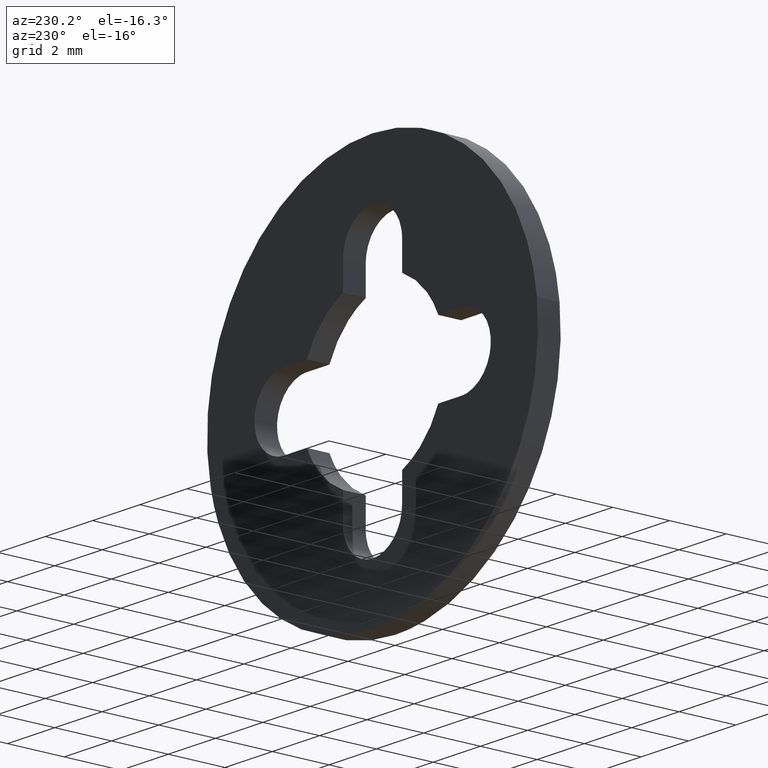
[diagram: clean part render]
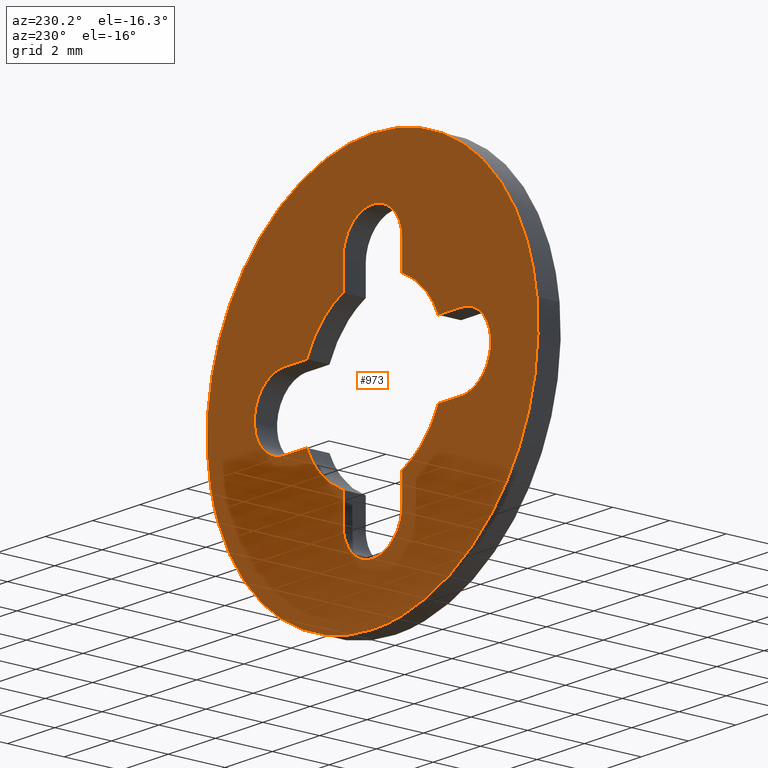
[diagram: same view with one face highlighted and labeled with its STEP entity id]
A machine part, auxiliary view. The second image highlights one B-rep face of the part: STEP entity #973.
In plain terms, the highlighted face is a freeform B-spline surface patch.
Its self-contained STEP definition (entity closure, byte-faithful):
#85=CARTESIAN_POINT('',(-6.951067204199181,0.800000000000023,0.826235270783800));
#86=VERTEX_POINT('',#85);
#92=CARTESIAN_POINT('',(0.0,0.800000000000023,-7.0));
#93=VERTEX_POINT('',#92);
#94=CARTESIAN_POINT('',(-6.951067204199181,0.800000000000023,0.826235270783800));
#95=CARTESIAN_POINT('',(-7.0,0.800000000000023,0.414566628547695));
#96=CARTESIAN_POINT('',(-7.0,0.800000000000023,0.0));
#97=CARTESIAN_POINT('',(-6.999999999999999,0.800000000000023,-6.999999999999999));
#98=CARTESIAN_POINT('',(0.0,0.800000000000023,-7.0));
#106=(BOUNDED_CURVE()B_SPLINE_CURVE(2,(#94,#95,#96,#97,#98),.UNSPECIFIED.,.F.,.U.)B_SPLINE_CURVE_WITH_KNOTS((3,2,3),(0.229562579808786,0.250000000000000,0.500000000000000),.UNSPECIFIED.)CURVE()GEOMETRIC_REPRESENTATION_ITEM()RATIONAL_B_SPLINE_CURVE((0.956026962526900,0.976056072863809,1.0,0.707106781186547,1.0))REPRESENTATION_ITEM(''));
#107=EDGE_CURVE('',#86,#93,#106,.T.);
#109=CARTESIAN_POINT('',(6.986943739989564,0.800000000000023,-0.427337307304794));
#110=VERTEX_POINT('',#109);
#111=CARTESIAN_POINT('',(0.0,0.800000000000023,-7.0));
#112=CARTESIAN_POINT('',(6.584944800046739,0.800000000000023,-6.999999999999999));
#113=CARTESIAN_POINT('',(6.986943739989564,0.800000000000023,-0.427337307304794));
#121=(BOUNDED_CURVE()B_SPLINE_CURVE(2,(#111,#112,#113),.UNSPECIFIED.,.F.,.U.)B_SPLINE_CURVE_WITH_KNOTS((3,3),(0.500000000000000,0.739333023226263),.UNSPECIFIED.)CURVE()GEOMETRIC_REPRESENTATION_ITEM()RATIONAL_B_SPLINE_CURVE((1.0,0.719603921835620,0.976072172374189))REPRESENTATION_ITEM(''));
#122=EDGE_CURVE('',#93,#110,#121,.T.);
#196=CARTESIAN_POINT('',(0.0,0.800000000000023,7.0));
#197=VERTEX_POINT('',#196);
#198=CARTESIAN_POINT('',(6.986943739989564,0.800000000000023,-0.427337307304794));
#199=CARTESIAN_POINT('',(7.0,0.800000000000023,-0.213868104908519));
#200=CARTESIAN_POINT('',(7.0,0.800000000000023,0.0));
#201=CARTESIAN_POINT('',(6.999999999999999,0.800000000000023,6.999999999999999));
#202=CARTESIAN_POINT('',(0.0,0.800000000000023,7.0));
#210=(BOUNDED_CURVE()B_SPLINE_CURVE(2,(#198,#199,#200,#201,#202),.UNSPECIFIED.,.F.,.U.)B_SPLINE_CURVE_WITH_KNOTS((3,2,3),(0.739333023226263,0.750000000000000,1.0),.UNSPECIFIED.)CURVE()GEOMETRIC_REPRESENTATION_ITEM()RATIONAL_B_SPLINE_CURVE((0.976072172374189,0.987502859350927,1.0,0.707106781186547,1.0))REPRESENTATION_ITEM(''));
#211=EDGE_CURVE('',#110,#197,#210,.T.);
#213=CARTESIAN_POINT('',(0.0,0.800000000000023,7.0));
#214=CARTESIAN_POINT('',(-6.217225619455447,0.800000000000023,7.0));
#215=CARTESIAN_POINT('',(-6.951067204199181,0.800000000000023,0.826235270783800));
#223=(BOUNDED_CURVE()B_SPLINE_CURVE(2,(#213,#214,#215),.UNSPECIFIED.,.F.,.U.)B_SPLINE_CURVE_WITH_KNOTS((3,3),(0.0,0.229562579808786),.UNSPECIFIED.)CURVE()GEOMETRIC_REPRESENTATION_ITEM()RATIONAL_B_SPLINE_CURVE((1.0,0.731050708322738,0.956026962526900))REPRESENTATION_ITEM(''));
#224=EDGE_CURVE('',#197,#86,#223,.T.);
#244=CARTESIAN_POINT('',(2.782085548648710,0.800000000000000,1.250000000000000));
#245=VERTEX_POINT('',#244);
#251=CARTESIAN_POINT('',(3.750000000000000,0.800000000000023,1.250000000000000));
#252=VERTEX_POINT('',#251);
#253=CARTESIAN_POINT('',(3.750000000000000,0.800000000000023,1.250000000000000));
#254=CARTESIAN_POINT('',(2.782085548648710,0.800000000000000,1.250000000000000));
#255=QUASI_UNIFORM_CURVE('',1,(#253,#254),.UNSPECIFIED.,.F.,.U.);
#256=EDGE_CURVE('',#252,#245,#255,.T.);
#302=CARTESIAN_POINT('',(3.750000000000000,0.800000000000023,-1.250000000000000));
#303=VERTEX_POINT('',#302);
#304=CARTESIAN_POINT('',(3.750000000000000,0.800000000000023,-1.250000000000000));
#305=CARTESIAN_POINT('',(5.000000000000001,0.800000000000023,-1.250000000000000));
#306=CARTESIAN_POINT('',(5.0,0.800000000000023,0.0));
#307=CARTESIAN_POINT('',(5.000000000000001,0.800000000000023,1.250000000000000));
#308=CARTESIAN_POINT('',(3.750000000000000,0.800000000000023,1.250000000000000));
#316=(BOUNDED_CURVE()B_SPLINE_CURVE(2,(#304,#305,#306,#307,#308),.UNSPECIFIED.,.F.,.U.)B_SPLINE_CURVE_WITH_KNOTS((3,2,3),(0.0,0.500000000000000,1.0),.UNSPECIFIED.)CURVE()GEOMETRIC_REPRESENTATION_ITEM()RATIONAL_B_SPLINE_CURVE((1.0,0.707106781186548,1.0,0.707106781186548,1.0))REPRESENTATION_ITEM(''));
#317=EDGE_CURVE('',#303,#252,#316,.T.);
#340=CARTESIAN_POINT('',(2.782085548648710,0.800000000000023,-1.250000000000000));
#341=VERTEX_POINT('',#340);
#342=CARTESIAN_POINT('',(2.782085548648710,0.800000000000023,-1.250000000000000));
#343=CARTESIAN_POINT('',(3.750000000000000,0.800000000000023,-1.250000000000000));
#344=QUASI_UNIFORM_CURVE('',1,(#342,#343),.UNSPECIFIED.,.F.,.U.);
#345=EDGE_CURVE('',#341,#303,#344,.T.);
#385=CARTESIAN_POINT('',(1.250000000000000,0.800000000000023,-2.782085548648710));
#386=VERTEX_POINT('',#385);
#387=CARTESIAN_POINT('',(1.250000000000000,0.800000000000023,-2.782085548648711));
#388=CARTESIAN_POINT('',(2.307118707617101,0.800000000000023,-2.307118707617101));
#389=CARTESIAN_POINT('',(2.782085548648711,0.800000000000023,-1.250000000000001));
#397=(BOUNDED_CURVE()B_SPLINE_CURVE(2,(#387,#388,#389),.UNSPECIFIED.,.F.,.U.)CURVE()GEOMETRIC_REPRESENTATION_ITEM()QUASI_UNIFORM_CURVE()RATIONAL_B_SPLINE_CURVE((1.0,0.934791814352061,1.0))REPRESENTATION_ITEM(''));
#398=EDGE_CURVE('',#386,#341,#397,.T.);
#421=CARTESIAN_POINT('',(1.249999999999980,0.800000000000023,-3.749999781833845));
#422=VERTEX_POINT('',#421);
#423=CARTESIAN_POINT('',(1.249999999999980,0.800000000000023,-3.749999781833845));
#424=CARTESIAN_POINT('',(1.250000000000000,0.800000000000023,-2.782085548648710));
#425=QUASI_UNIFORM_CURVE('',1,(#423,#424),.UNSPECIFIED.,.F.,.U.);
#426=EDGE_CURVE('',#422,#386,#425,.T.);
#474=CARTESIAN_POINT('',(-1.250000000000000,0.800000000000023,-3.750000000000000));
#475=VERTEX_POINT('',#474);
#476=CARTESIAN_POINT('',(-1.250000000000000,0.800000000000023,-3.750000000000000));
#477=CARTESIAN_POINT('',(-1.250000000000000,0.800000000000023,-4.471687884968399));
#478=CARTESIAN_POINT('',(-0.624999937020855,0.800000000000023,-4.832531791091572));
#479=CARTESIAN_POINT('',(0.000000125958290,0.800000000000023,-5.193375697214743));
#480=CARTESIAN_POINT('',(0.625000125958284,0.800000000000023,-4.832531682008489));
#481=CARTESIAN_POINT('',(1.250000125958278,0.800000000000023,-4.471687666802235));
#482=CARTESIAN_POINT('',(1.249999999999981,0.800000000000023,-3.749999781833845));
#490=(BOUNDED_CURVE()B_SPLINE_CURVE(2,(#476,#477,#478,#479,#480,#481,#482),.UNSPECIFIED.,.F.,.U.)B_SPLINE_CURVE_WITH_KNOTS((3,2,2,3),(0.0,0.333333333333333,0.666666666666667,1.0),.UNSPECIFIED.)CURVE()GEOMETRIC_REPRESENTATION_ITEM()RATIONAL_B_SPLINE_CURVE((1.0,0.866025389240028,1.0,0.866025389240028,1.0,0.866025389240028,1.0))REPRESENTATION_ITEM(''));
#491=EDGE_CURVE('',#475,#422,#490,.T.);
#514=CARTESIAN_POINT('',(-1.250000000000000,0.800000000000023,-2.782085548648710));
#515=VERTEX_POINT('',#514);
#516=CARTESIAN_POINT('',(-1.250000000000000,0.800000000000023,-2.782085548648710));
#517=CARTESIAN_POINT('',(-1.250000000000000,0.800000000000023,-3.750000000000000));
#518=QUASI_UNIFORM_CURVE('',1,(#516,#517),.UNSPECIFIED.,.F.,.U.);
#519=EDGE_CURVE('',#515,#475,#518,.T.);
#559=CARTESIAN_POINT('',(-2.782085548648710,0.800000000000023,-1.250000000000000));
#560=VERTEX_POINT('',#559);
#561=CARTESIAN_POINT('',(-2.782085548648711,0.800000000000023,-1.250000000000001));
#562=CARTESIAN_POINT('',(-2.307118707617101,0.800000000000023,-2.307118707617100));
#563=CARTESIAN_POINT('',(-1.250000000000001,0.800000000000023,-2.782085548648711));
#571=(BOUNDED_CURVE()B_SPLINE_CURVE(2,(#561,#562,#563),.UNSPECIFIED.,.F.,.U.)CURVE()GEOMETRIC_REPRESENTATION_ITEM()QUASI_UNIFORM_CURVE()RATIONAL_B_SPLINE_CURVE((1.0,0.934791814352061,1.0))REPRESENTATION_ITEM(''));
#572=EDGE_CURVE('',#560,#515,#571,.T.);
#595=CARTESIAN_POINT('',(-3.750000000000000,0.800000000000023,-1.250000000000000));
#596=VERTEX_POINT('',#595);
#597=CARTESIAN_POINT('',(-3.750000000000000,0.800000000000023,-1.250000000000000));
#598=CARTESIAN_POINT('',(-2.782085548648710,0.800000000000023,-1.250000000000000));
#599=QUASI_UNIFORM_CURVE('',1,(#597,#598),.UNSPECIFIED.,.F.,.U.);
#600=EDGE_CURVE('',#596,#560,#599,.T.);
#646=CARTESIAN_POINT('',(-3.750000000000000,0.800000000000023,1.250000000000000));
#647=VERTEX_POINT('',#646);
#648=CARTESIAN_POINT('',(-3.750000000000000,0.800000000000023,1.250000000000000));
#649=CARTESIAN_POINT('',(-5.000000000000001,0.800000000000023,1.250000000000000));
#650=CARTESIAN_POINT('',(-5.0,0.800000000000023,0.0));
#651=CARTESIAN_POINT('',(-5.000000000000001,0.800000000000023,-1.250000000000000));
#652=CARTESIAN_POINT('',(-3.750000000000000,0.800000000000023,-1.250000000000000));
#660=(BOUNDED_CURVE()B_SPLINE_CURVE(2,(#648,#649,#650,#651,#652),.UNSPECIFIED.,.F.,.U.)B_SPLINE_CURVE_WITH_KNOTS((3,2,3),(0.0,0.500000000000000,1.0),.UNSPECIFIED.)CURVE()GEOMETRIC_REPRESENTATION_ITEM()RATIONAL_B_SPLINE_CURVE((1.0,0.707106781186548,1.0,0.707106781186548,1.0))REPRESENTATION_ITEM(''));
#661=EDGE_CURVE('',#647,#596,#660,.T.);
#684=CARTESIAN_POINT('',(-2.782085548648710,0.800000000000023,1.250000000000000));
#685=VERTEX_POINT('',#684);
#686=CARTESIAN_POINT('',(-2.782085548648710,0.800000000000023,1.250000000000000));
#687=CARTESIAN_POINT('',(-3.750000000000000,0.800000000000023,1.250000000000000));
#688=QUASI_UNIFORM_CURVE('',1,(#686,#687),.UNSPECIFIED.,.F.,.U.);
#689=EDGE_CURVE('',#685,#647,#688,.T.);
#729=CARTESIAN_POINT('',(-1.250000000000000,0.800000000000023,2.782085548648710));
#730=VERTEX_POINT('',#729);
#731=CARTESIAN_POINT('',(-1.250000000000001,0.800000000000023,2.782085548648711));
#732=CARTESIAN_POINT('',(-2.307118707617101,0.800000000000023,2.307118707617101));
#733=CARTESIAN_POINT('',(-2.782085548648711,0.800000000000023,1.250000000000001));
#741=(BOUNDED_CURVE()B_SPLINE_CURVE(2,(#731,#732,#733),.UNSPECIFIED.,.F.,.U.)CURVE()GEOMETRIC_REPRESENTATION_ITEM()QUASI_UNIFORM_CURVE()RATIONAL_B_SPLINE_CURVE((1.0,0.934791814352061,1.0))REPRESENTATION_ITEM(''));
#742=EDGE_CURVE('',#730,#685,#741,.T.);
#765=CARTESIAN_POINT('',(-1.250000000000000,0.800000000000023,3.750000000000000));
#766=VERTEX_POINT('',#765);
#767=CARTESIAN_POINT('',(-1.250000000000000,0.800000000000023,3.750000000000000));
#768=CARTESIAN_POINT('',(-1.250000000000000,0.800000000000023,2.782085548648710));
#769=QUASI_UNIFORM_CURVE('',1,(#767,#768),.UNSPECIFIED.,.F.,.U.);
#770=EDGE_CURVE('',#766,#730,#769,.T.);
#816=CARTESIAN_POINT('',(1.250000000000000,0.800000000000023,3.750000000000000));
#817=VERTEX_POINT('',#816);
#818=CARTESIAN_POINT('',(1.250000000000000,0.800000000000023,3.750000000000000));
#819=CARTESIAN_POINT('',(1.250000000000000,0.800000000000023,5.000000000000001));
#820=CARTESIAN_POINT('',(0.0,0.800000000000023,5.0));
#821=CARTESIAN_POINT('',(-1.250000000000000,0.800000000000023,5.000000000000001));
#822=CARTESIAN_POINT('',(-1.250000000000000,0.800000000000023,3.750000000000000));
#830=(BOUNDED_CURVE()B_SPLINE_CURVE(2,(#818,#819,#820,#821,#822),.UNSPECIFIED.,.F.,.U.)B_SPLINE_CURVE_WITH_KNOTS((3,2,3),(0.0,0.500000000000000,1.0),.UNSPECIFIED.)CURVE()GEOMETRIC_REPRESENTATION_ITEM()RATIONAL_B_SPLINE_CURVE((1.0,0.707106781186548,1.0,0.707106781186548,1.0))REPRESENTATION_ITEM(''));
#831=EDGE_CURVE('',#817,#766,#830,.T.);
#854=CARTESIAN_POINT('',(1.250000000000000,0.800000000000023,2.782085548648710));
#855=VERTEX_POINT('',#854);
#856=CARTESIAN_POINT('',(1.250000000000000,0.800000000000023,2.782085548648710));
#857=CARTESIAN_POINT('',(1.250000000000000,0.800000000000023,3.750000000000000));
#858=QUASI_UNIFORM_CURVE('',1,(#856,#857),.UNSPECIFIED.,.F.,.U.);
#859=EDGE_CURVE('',#855,#817,#858,.T.);
#897=CARTESIAN_POINT('',(2.782085548648710,0.800000000000000,1.250000000000000));
#898=CARTESIAN_POINT('',(2.307118707617101,0.800000000000023,2.307118707617100));
#899=CARTESIAN_POINT('',(1.250000000000002,0.800000000000023,2.782085548648710));
#907=(BOUNDED_CURVE()B_SPLINE_CURVE(2,(#897,#898,#899),.UNSPECIFIED.,.F.,.U.)CURVE()GEOMETRIC_REPRESENTATION_ITEM()QUASI_UNIFORM_CURVE()RATIONAL_B_SPLINE_CURVE((1.0,0.934791814352061,1.0))REPRESENTATION_ITEM(''));
#908=EDGE_CURVE('',#245,#855,#907,.T.);
#944=CARTESIAN_POINT('',(-7.699172526060641,0.800000000000000,7.699299972865284));
#945=CARTESIAN_POINT('',(7.699129592835009,0.800000000000000,7.699299972865284));
#946=CARTESIAN_POINT('',(-7.699172526060641,0.800000000000000,-7.699300348374545));
#947=CARTESIAN_POINT('',(7.699129592835009,0.800000000000000,-7.699300348374545));
#948=B_SPLINE_SURFACE_WITH_KNOTS('',1,1,((#944,#946),(#945,#947)),.UNSPECIFIED.,.F.,.F.,.U.,(2,2),(2,2),(0.0,15.398302118895650),(0.0,15.398600321239829),.UNSPECIFIED.);
#949=ORIENTED_EDGE('',*,*,#211,.F.);
#950=ORIENTED_EDGE('',*,*,#122,.F.);
#951=ORIENTED_EDGE('',*,*,#107,.F.);
#952=ORIENTED_EDGE('',*,*,#224,.F.);
#953=EDGE_LOOP('',(#949,#950,#951,#952));
#954=FACE_OUTER_BOUND('',#953,.T.);
#955=ORIENTED_EDGE('',*,*,#256,.T.);
#956=ORIENTED_EDGE('',*,*,#908,.T.);
#957=ORIENTED_EDGE('',*,*,#859,.T.);
#958=ORIENTED_EDGE('',*,*,#831,.T.);
#959=ORIENTED_EDGE('',*,*,#770,.T.);
#960=ORIENTED_EDGE('',*,*,#742,.T.);
#961=ORIENTED_EDGE('',*,*,#689,.T.);
#962=ORIENTED_EDGE('',*,*,#661,.T.);
#963=ORIENTED_EDGE('',*,*,#600,.T.);
#964=ORIENTED_EDGE('',*,*,#572,.T.);
#965=ORIENTED_EDGE('',*,*,#519,.T.);
#966=ORIENTED_EDGE('',*,*,#491,.T.);
#967=ORIENTED_EDGE('',*,*,#426,.T.);
#968=ORIENTED_EDGE('',*,*,#398,.T.);
#969=ORIENTED_EDGE('',*,*,#345,.T.);
#970=ORIENTED_EDGE('',*,*,#317,.T.);
#971=EDGE_LOOP('',(#955,#956,#957,#958,#959,#960,#961,#962,#963,#964,#965,#966,#967,#968,#969,#970));
#972=FACE_BOUND('',#971,.T.);
#973=ADVANCED_FACE('',(#954,#972),#948,.T.);